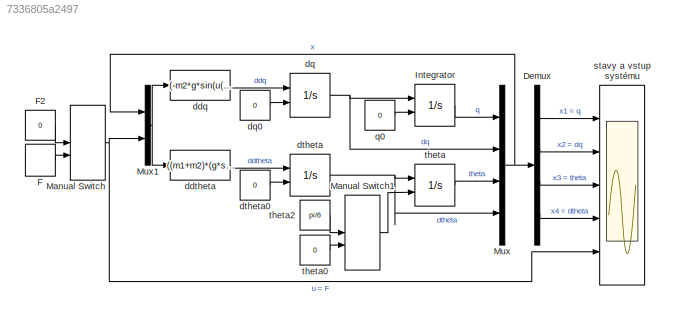
MODEL slx_7336805a2497
KIND model
CONFIG AbsTol = auto
CONFIG FixedStep = Ts
CONFIG MaxStep = 0.01
CONFIG MinStep = auto
CONFIG RelTol = 1e-3
CONFIG SampleTimeConstraint = Unconstrained
CONFIG Solver = FixedStepAuto
CONFIG SolverMode = Auto
CONFIG SolverName = FixedStepAuto
CONFIG StartTime = 0.0
CONFIG StopTime = 10.0
BLOCK [Scope]  stavy a vstup systému
  NumInputPorts = 5
  Ports = [5]
  ScopeSpecificationString = Simulink.scopes.TimeScopeBlockCfg('CurrentConfiguration', extmgr.ConfigurationSet(extmgr.Configuration('Core','General UI',true,'FigureColor',[1 1 1]),extmgr.Configuration('Core','Source UI',true),extmgr.Configuration('Sources','WiredSimulink',true,'DataLoggingSaveFormat','Structure','DataLoggingDecimation','1','DataLoggingDecimateData',true,'DataLogging',true,'DataLoggingVariableName','imp_nonlin...<+7703ch>
BLOCK [Demux] Demux
  DisplayOption = bar
  Ports = [1, 4]
BLOCK [DiscretePulseGenerator] F
  Amplitude = -1
  Period = 10
  PhaseDelay = 0.01
  Ports = [0, 1]
  PulseType = Time based
  PulseWidth = 0.1
BLOCK [Constant] F2
  Value = 0
BLOCK [Integrator] Integrator
  InitialConditionSource = external
  Ports = [2, 1]
BLOCK [ManualSwitch] Manual Switch
  CurrentSetting = 0
BLOCK [ManualSwitch] Manual Switch1
BLOCK [Mux] Mux
  DisplayOption = bar
  Ports = [4, 1]
BLOCK [Mux] Mux1
  DisplayOption = bar
  Inputs = 2
  Ports = [2, 1]
BLOCK [Fcn] ddq
  Expr = (-m2*g*sin(u(3))*cos(u(3))+m2*l*((u(4))^2)*sin(u(3))+b*m2*u(4)*cos(u(3))+u(5))/(m1+(1-(cos(u(3)))^2)*m2)
BLOCK [Fcn] ddtheta
  Expr = ((m1+m2)*(g*sin(u(3))-b*u(4))-(m2*l*((u(4))^2)*sin(u(3))+u(5))*cos(u(3)))/(l*(m1+(1-(cos(u(3)))^2)*m2))
BLOCK [Integrator] dq
  InitialConditionSource = external
  Ports = [2, 1]
BLOCK [Constant] dq0
  Value = 0
BLOCK [Integrator] dtheta
  InitialConditionSource = external
  Ports = [2, 1]
BLOCK [Constant] dtheta0
  Value = 0
BLOCK [Constant] q0
  Value = 0
BLOCK [Integrator] theta
  InitialConditionSource = external
  Ports = [2, 1]
BLOCK [Constant] theta0
  Value = 0
BLOCK [Constant] theta2
  Value = pi/6
LINE Demux:1 ->  stavy a vstup systému:1
LINE Demux:2 ->  stavy a vstup systému:2
LINE Demux:3 ->  stavy a vstup systému:3
LINE Demux:4 ->  stavy a vstup systému:4
LINE F2:1 -> Manual Switch:1
LINE F:1 -> Manual Switch:2
LINE Integrator:1 -> Mux:1
LINE Manual Switch1:1 -> theta:2
NET Manual Switch:1 ->  stavy a vstup systému:5, Mux1:2
NET Mux1:1 -> ddq:1, ddtheta:1
NET Mux:1 -> Demux:1, Mux1:1
LINE ddq:1 -> dq:1
LINE ddtheta:1 -> dtheta:1
LINE dq0:1 -> dq:2
NET dq:1 -> Integrator:1, Mux:2
LINE dtheta0:1 -> dtheta:2
NET dtheta:1 -> Mux:4, theta:1
LINE q0:1 -> Integrator:2
LINE theta0:1 -> Manual Switch1:2
LINE theta2:1 -> Manual Switch1:1
LINE theta:1 -> Mux:3
note: NET lines group one-source signal fan-out (src -> all destinations, sorted); 1:1 wires keep LINE
